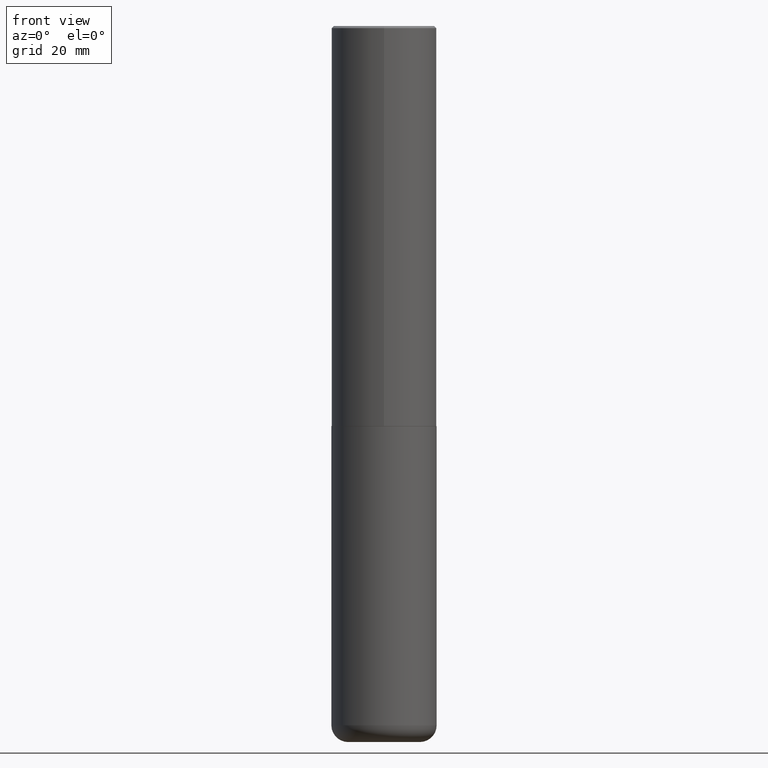
[diagram: clean part render]
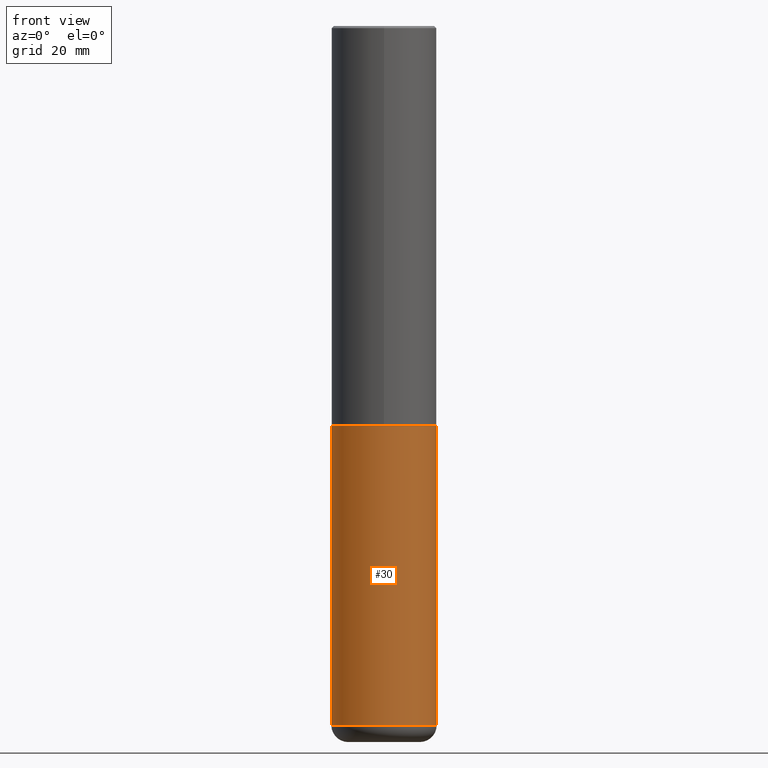
[diagram: same view with one face highlighted and labeled with its STEP entity id]
A machine part, front view. The second image highlights one B-rep face of the part: STEP entity #30.
In plain terms, the highlighted cylindrical surface (partial cylindrical patch) has radius 12.5006 mm, axis along (-0, 0, 1).
Its self-contained STEP definition (entity closure, byte-faithful):
#23 = CARTESIAN_POINT ( 'NONE',  ( 0.4921499999999999764, -1.649515443723054663E-14, -3.740100000000000424 ) ) ;
#30 = ADVANCED_FACE ( 'NONE', ( #361 ), #72, .T. ) ;
#37 = CARTESIAN_POINT ( 'NONE',  ( 0.4921499999999999764, -2.625489222369879024E-14, -6.535400000000000098 ) ) ;
#45 = DIRECTION ( 'NONE',  ( -2.445468806185136597E-29, 3.491481338843145583E-15, 1.000000000000000000 ) ) ;
#51 = AXIS2_PLACEMENT_3D ( 'NONE', #267, #363, #77 ) ;
#52 = EDGE_LOOP ( 'NONE', ( #230, #160, #227, #196 ) ) ;
#67 = DIRECTION ( 'NONE',  ( -2.445468806185136597E-29, 3.491481338843145583E-15, 1.000000000000000000 ) ) ;
#72 = CYLINDRICAL_SURFACE ( 'NONE', #290, 0.4921499999999999764 ) ;
#75 = VECTOR ( 'NONE', #408, 39.37007874015748143 ) ;
#77 = DIRECTION ( 'NONE',  ( 1.000000000000000000, -6.982962677686265133E-15, 0.000000000000000000 ) ) ;
#80 = LINE ( 'NONE', #285, #75 ) ;
#88 = CARTESIAN_POINT ( 'NONE',  ( -0.4921499999999999764, -1.444142217459804055E-14, -3.740100000000000424 ) ) ;
#89 = EDGE_CURVE ( 'NONE', #192, #326, #410, .T. ) ;
#101 = EDGE_CURVE ( 'NONE', #192, #197, #172, .T. ) ;
#160 = ORIENTED_EDGE ( 'NONE', *, *, #89, .T. ) ;
#167 = AXIS2_PLACEMENT_3D ( 'NONE', #231, #67, #200 ) ;
#168 = EDGE_CURVE ( 'NONE', #326, #261, #80, .T. ) ;
#172 = LINE ( 'NONE', #234, #299 ) ;
#192 = VERTEX_POINT ( 'NONE', #209 ) ;
#196 = ORIENTED_EDGE ( 'NONE', *, *, #322, .F. ) ;
#197 = VERTEX_POINT ( 'NONE', #88 ) ;
#200 = DIRECTION ( 'NONE',  ( 1.000000000000000000, -6.982962677686265922E-15, 0.000000000000000000 ) ) ;
#207 = DIRECTION ( 'NONE',  ( 1.000000000000000000, -6.982962677686265922E-15, 4.876176775795935793E-29 ) ) ;
#209 = CARTESIAN_POINT ( 'NONE',  ( -0.4921499999999999764, -1.932129106783216551E-14, -6.535400000000000098 ) ) ;
#227 = ORIENTED_EDGE ( 'NONE', *, *, #168, .T. ) ;
#230 = ORIENTED_EDGE ( 'NONE', *, *, #101, .F. ) ;
#231 = CARTESIAN_POINT ( 'NONE',  ( 9.146297882013029477E-29, -1.305848935540725085E-14, -3.740100000000000424 ) ) ;
#234 = CARTESIAN_POINT ( 'NONE',  ( -0.4921499999999999764, 3.496936074043332897E-15, -2.420853904668951509E-29 ) ) ;
#261 = VERTEX_POINT ( 'NONE', #23 ) ;
#267 = CARTESIAN_POINT ( 'NONE',  ( 1.598211683594234343E-28, -2.281822714187549288E-14, -6.535400000000000098 ) ) ;
#285 = CARTESIAN_POINT ( 'NONE',  ( 0.4921499999999999764, -3.436665081823295777E-15, 2.399810400207969603E-29 ) ) ;
#290 = AXIS2_PLACEMENT_3D ( 'NONE', #337, #45, #207 ) ;
#294 = CIRCLE ( 'NONE', #167, 0.4921499999999999764 ) ;
#299 = VECTOR ( 'NONE', #336, 39.37007874015748143 ) ;
#322 = EDGE_CURVE ( 'NONE', #197, #261, #294, .T. ) ;
#326 = VERTEX_POINT ( 'NONE', #37 ) ;
#336 = DIRECTION ( 'NONE',  ( -2.445468806185136877E-29, 3.491481338843145188E-15, 1.000000000000000000 ) ) ;
#337 = CARTESIAN_POINT ( 'NONE',  ( 0.000000000000000000, 0.000000000000000000, 0.000000000000000000 ) ) ;
#361 = FACE_OUTER_BOUND ( 'NONE', #52, .T. ) ;
#363 = DIRECTION ( 'NONE',  ( -2.445468806185136597E-29, 3.491481338843145583E-15, 1.000000000000000000 ) ) ;
#408 = DIRECTION ( 'NONE',  ( -2.445468806185136877E-29, 3.491481338843145188E-15, 1.000000000000000000 ) ) ;
#410 = CIRCLE ( 'NONE', #51, 0.4921500000000000319 ) ;